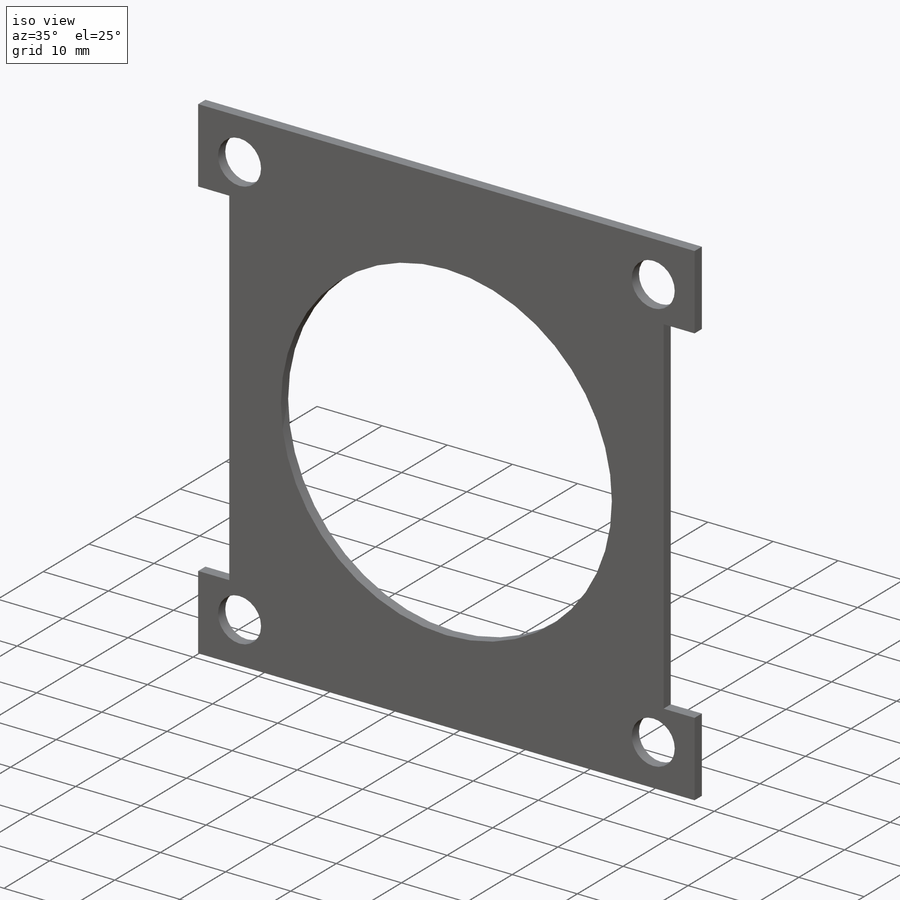
[diagram: iso view]
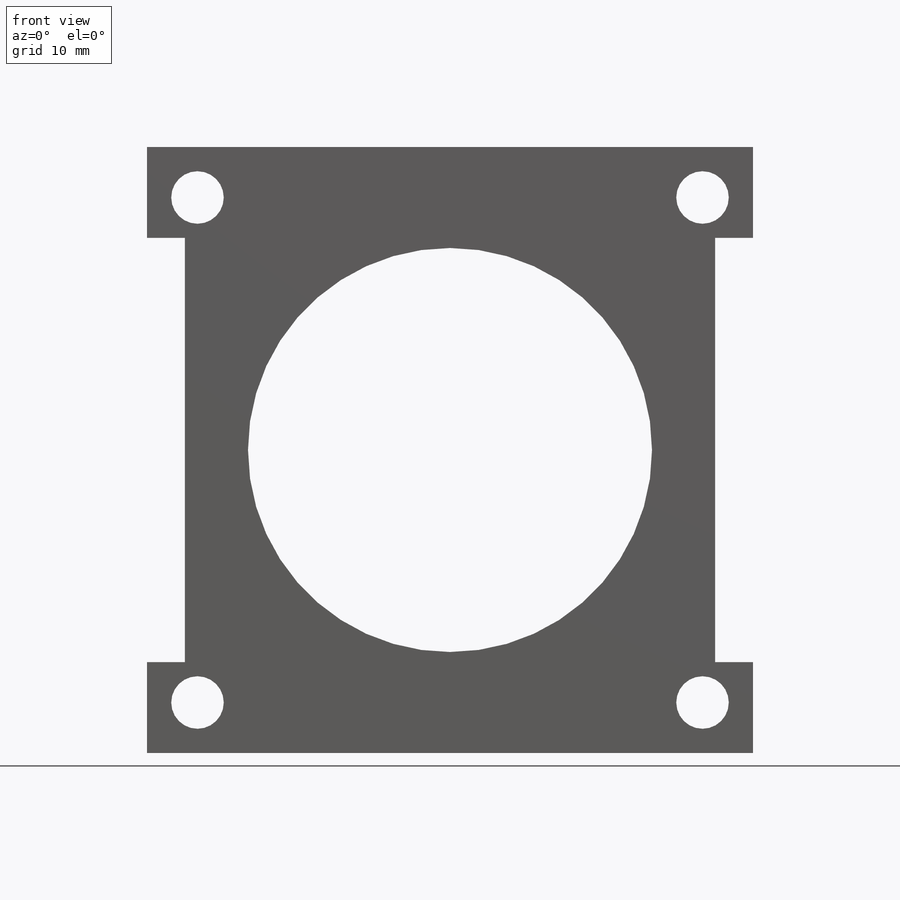
[diagram: front view]
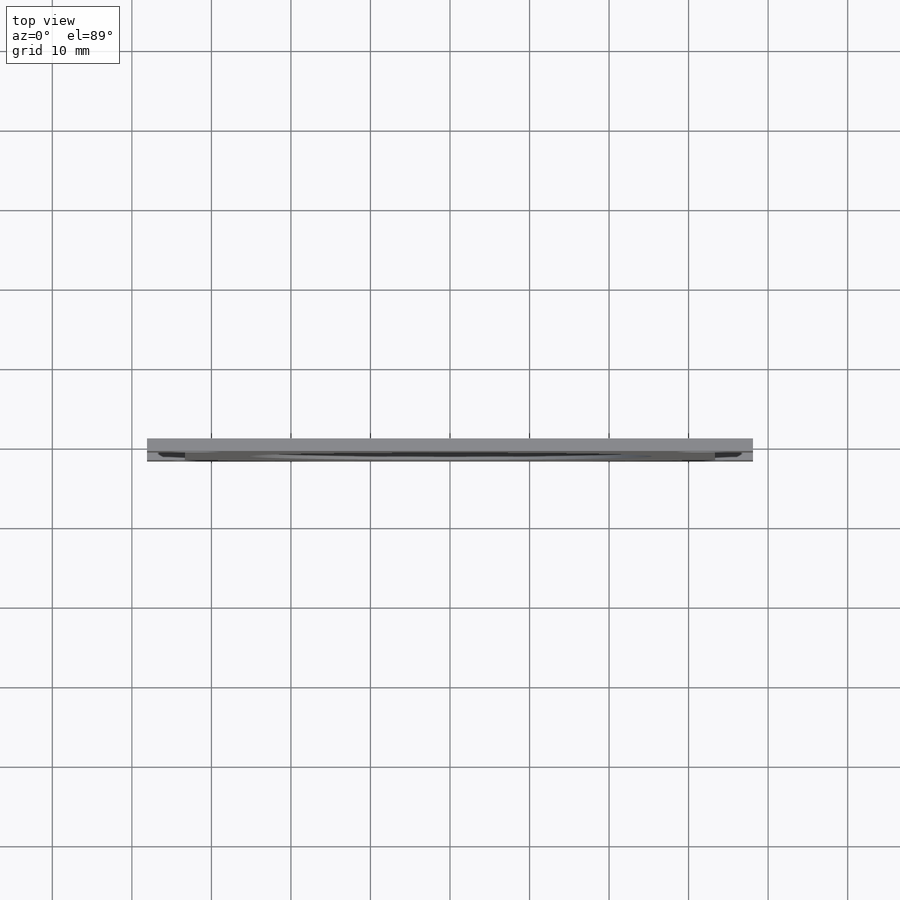
[diagram: top view]
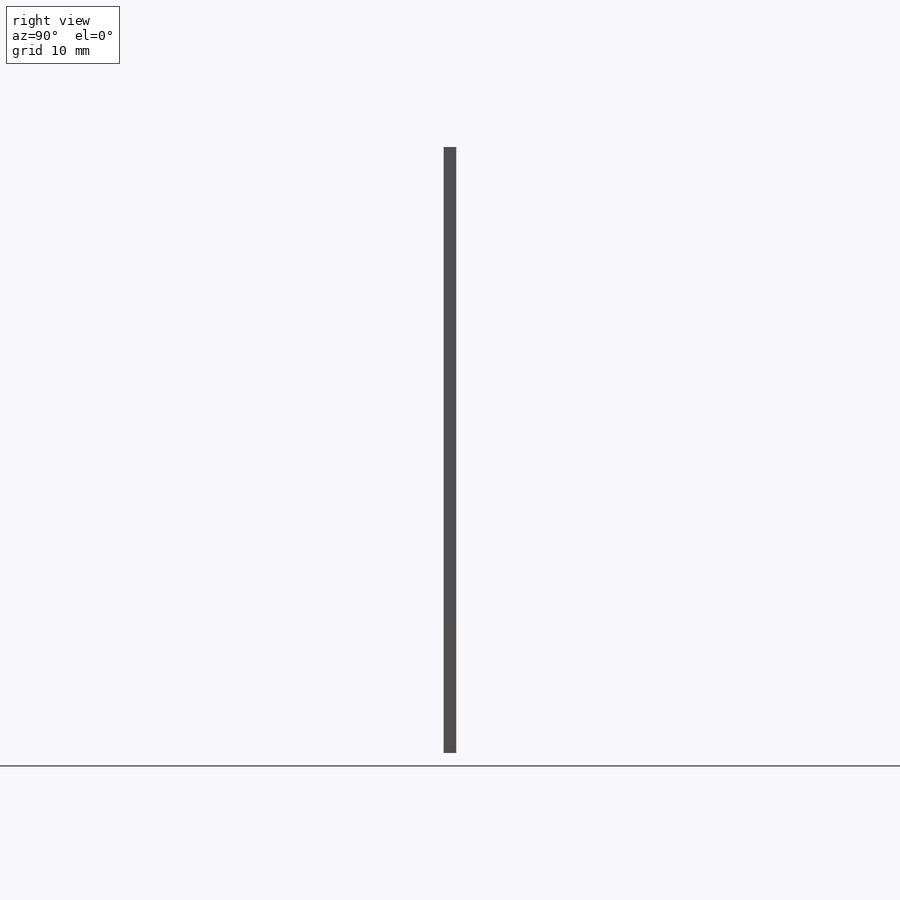
[diagram: right view]
SOLIDWORKS PART (.sldprt)
format: sldprt  version: not decoded by parser v0  size: 317,440 bytes
history: native  units: mm
features: sketch x8, extrude x5, cut_extrude x3, mirror x3, material x1, pattern_circular x1 (+13 scaffold rows collapsed)
feature tree (34):
  scaffold x13  (default folders/planes/origin — collapsed)
  material  "Material <not specified>"
  sketch  "Sketch1"  dims[D5=50.8mm D6=88.9mm D1=76.2mm D2=76.2mm D3=38.1mm D4=38.1mm]
  extrude  "Boss-Extrude1"  Depth=1.5875mm
  sketch  "Sketch2"  dims[c1.D3=6.604mm c1.D1=~84.128774mm c2.D1=45.0deg c2.D2=31.75mm c2.D3=31.75mm]
  cut_extrude  "Cut-Extrude1"  Depth=3.175mm
  mirror  "Mirror1"
  mirror  "Mirror2"
  sketch  "Sketch3"  dims[c1.D1=69.85mm c1.D2=88.9mm c2.D1=50.8mm c2.D2=6.35mm]
  extrude  "Boss-Extrude2"  Depth=0.508mm
  sketch  "Sketch4"  dims[c1.D1=~75.241255mm c2.D1=30.0deg c2.D2=38.1mm]
  cut_extrude  "Cut-Extrude2"  [1 undecoded]
  pattern_circular  "CirPattern1"  Count=3 Angle=120deg
  sketch  "Sketch5"  dims[c1.D1=3.175mm c1.D2=1.27mm c1.D3=1.27mm c1.D4=31.75mm c1.D5=53.975mm c1.D6=0.635mm c1.D7=~1.709432mm c1.D8=0.635mm c1.D9=~1.417958mm c2.D7=0.635mm c2.D9=1.905mm c2.D1=1.905mm c2.D2=1.27mm c3.D1=1.27mm c3.D2=0.762mm c4.D1=~1.288805mm c4.D2=~0.704038mm]
  extrude  "Boss-Extrude3"  Depth=0.3175mm
  sketch  "Sketch7"  dims[c1.D4=1.27mm c1.D3=1.27mm c1.D1=15.875mm c1.D2=0.635mm c2.D3=48.26mm c2.D4=33.655mm c3.D3=38.1mm c3.D5=1.27mm c4.D3=5.08mm c4.D1=25.0825mm]
  extrude  "Boss-Extrude4"  Depth=0.3175mm
  sketch  "Sketch8"  dims[D1=1.27mm D2=0.762mm D3=0.508mm D4=0.508mm D5=0.508mm D6=2.54mm D7=0.762mm D8=0.508mm D9=2.54mm]
  extrude  "Boss-Extrude10"  Depth=0.3175mm
  sketch  "Sketch9"  dims[D1=53.34mm D2=26.67mm D3=4.7625mm]
  cut_extrude  "Cut-Extrude3"  [1 undecoded]
  mirror  "Mirror3"
decode coverage: 15 of 20 modeling features carry decoded parameters
note: ~ marks probable driven/reference dimensions
note: 2 parameter values undecoded
note: suppression state not decoded; provenance and decode notes live in map.json
